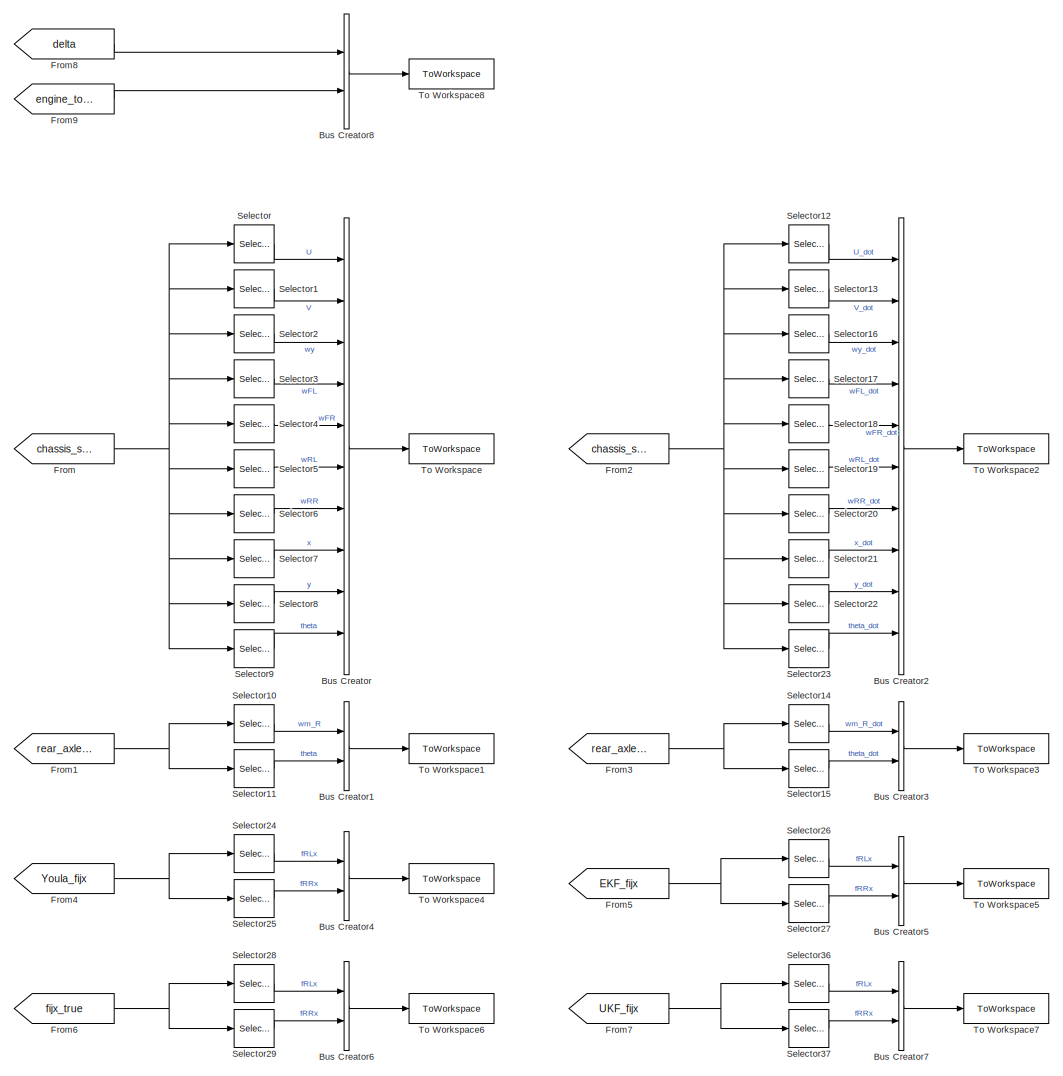
[diagram: root canvas - part 1/4, top center region]
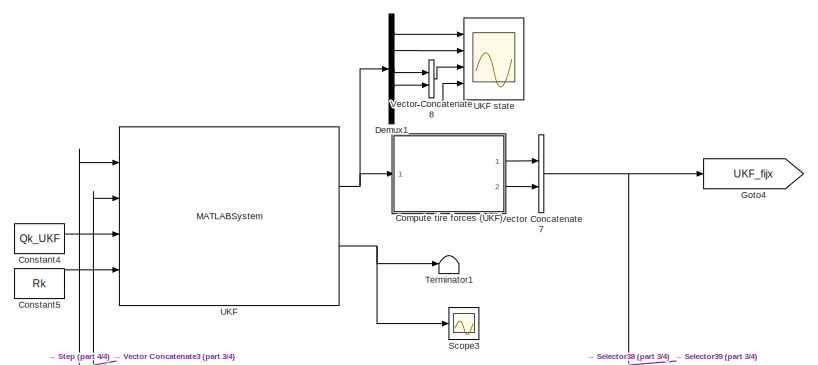
[diagram: root canvas - part 2/4, central region]
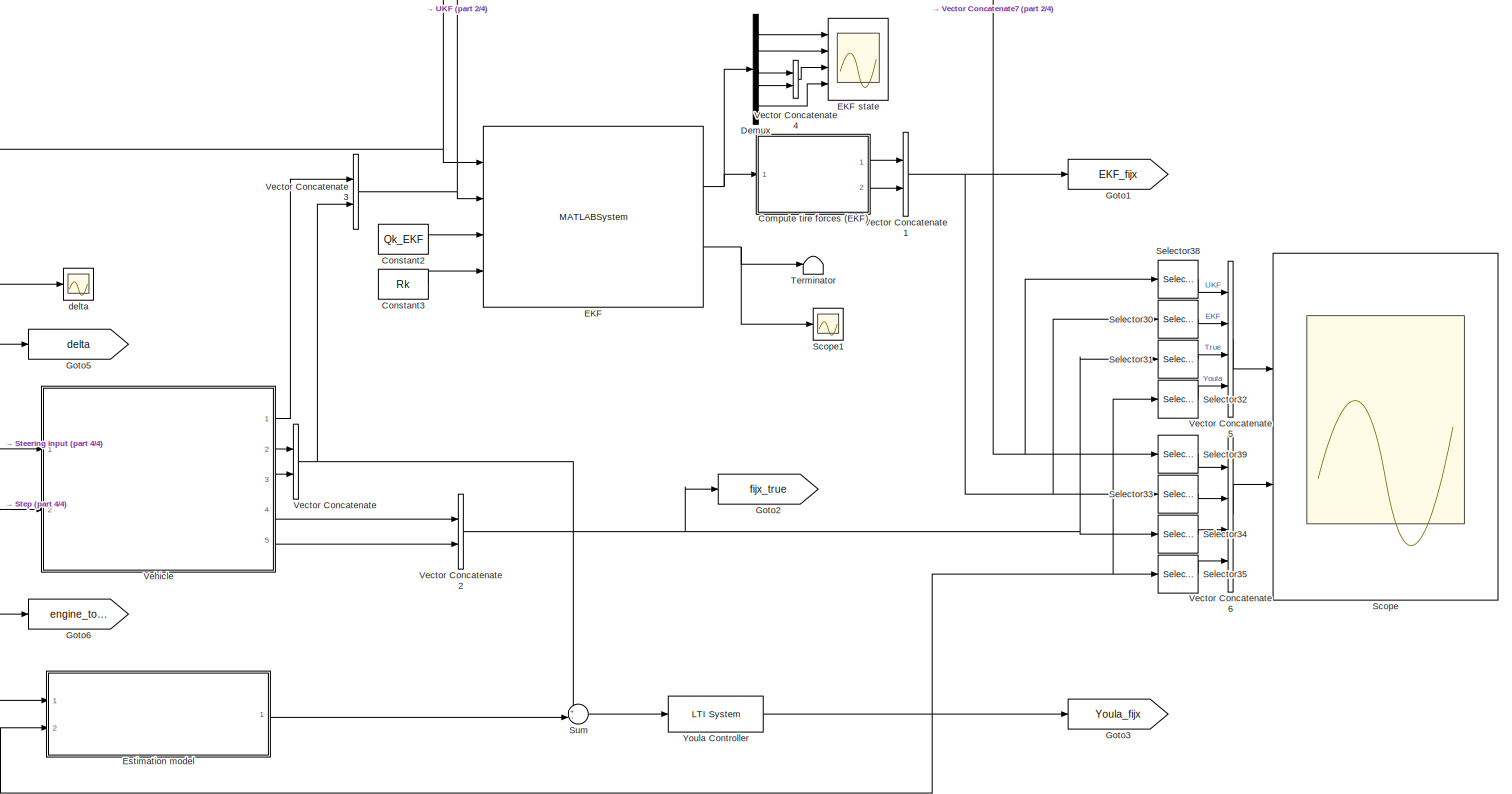
[diagram: root canvas - part 3/4, full width, bottom band]
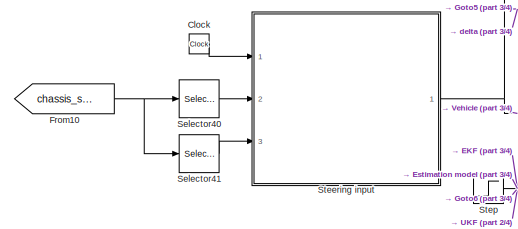
[diagram: root canvas - part 4/4, bottom left region]
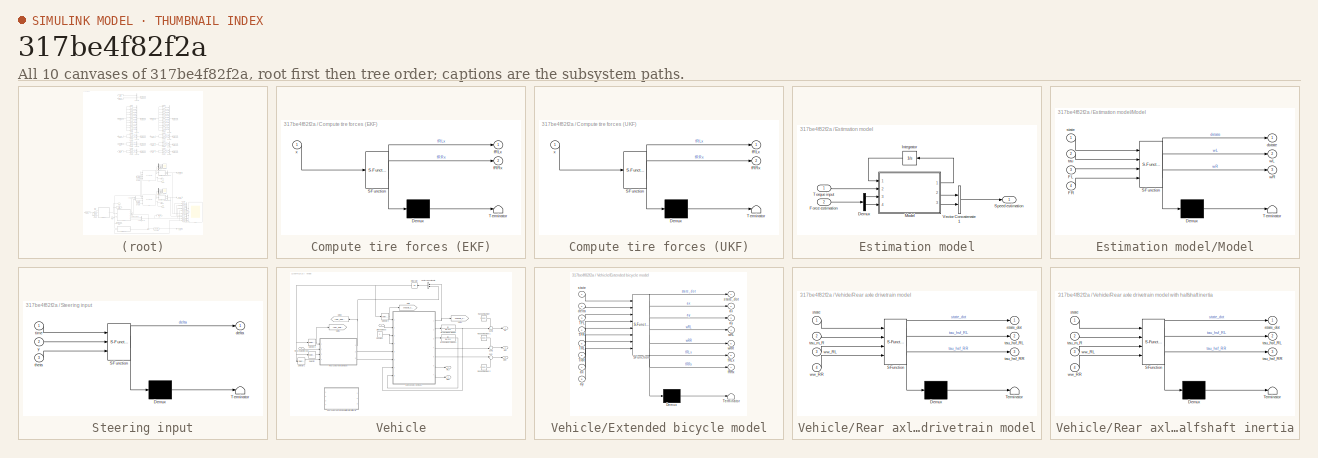
[diagram: thumbnail index - all 10 canvases of the model, root first then tree order]
MODEL slx_317be4f82f2a
KIND model
CONFIG AbsTol = auto
CONFIG EnableMultiTasking = off
CONFIG FixedStep = auto
CONFIG MaxStep = auto
CONFIG MinStep = auto
CONFIG RelTol = 1e-6
CONFIG SampleTimeConstraint = Unconstrained
CONFIG Solver = VariableStepAuto
CONFIG SolverName = VariableStepAuto
CONFIG StartTime = 0.0
CONFIG StopTime = 10.0
BLOCK [BusCreator] Bus Creator
  DisplayOption = bar
  InheritFromInputs = on
  Inputs = 10
  Ports = [10, 1]
BLOCK [BusCreator] Bus Creator1
  DisplayOption = bar
  InheritFromInputs = on
  Inputs = 2
  Ports = [2, 1]
BLOCK [BusCreator] Bus Creator2
  DisplayOption = bar
  InheritFromInputs = on
  Inputs = 10
  Ports = [10, 1]
BLOCK [BusCreator] Bus Creator3
  DisplayOption = bar
  InheritFromInputs = on
  Inputs = 2
  Ports = [2, 1]
BLOCK [BusCreator] Bus Creator4
  DisplayOption = bar
  InheritFromInputs = on
  Inputs = 2
  Ports = [2, 1]
BLOCK [BusCreator] Bus Creator5
  DisplayOption = bar
  InheritFromInputs = on
  Inputs = 2
  Ports = [2, 1]
BLOCK [BusCreator] Bus Creator6
  DisplayOption = bar
  InheritFromInputs = on
  Inputs = 2
  Ports = [2, 1]
BLOCK [BusCreator] Bus Creator7
  DisplayOption = bar
  InheritFromInputs = on
  Inputs = 2
  Ports = [2, 1]
BLOCK [BusCreator] Bus Creator8
  DisplayOption = bar
  InheritFromInputs = on
  Inputs = 2
  Ports = [2, 1]
BLOCK [Clock] Clock
BLOCK [SubSystem] Compute tire forces (EKF)
  ErrorFcn = Stateflow.Translate.translate
  PermitHierarchicalResolution = ExplicitOnly
  Ports = [1, 2]
  RequestExecContextInheritance = off
  SFBlockType = MATLAB Function
  TreatAsAtomicUnit = on
  Variant = off
BLOCK [Demux] Compute tire forces (EKF)/ Demux 
  Outputs = 1
  Ports = [1, 1]
BLOCK [S-Function] Compute tire forces (EKF)/ SFunction 
  EnableBusSupport = on
  FunctionName = sf_sfun
  Parameters = CRx_est,CRy_est,c1_est,c2_est,c3_est,epsDugoff_est,fRLz0_est,fRRz0_est,muRL0_est,muRR0_est,rw_est
  PortCounts = [1 3]
  Ports = [1, 3]
  SFcnIsStateOwnerBlock = off
  SFunctionDeploymentMode = off
  Tag = Stateflow S-Function model 5
BLOCK [Terminator] Compute tire forces (EKF)/ Terminator 
BLOCK [Outport] Compute tire forces (EKF)/fRLx
  IconDisplay = Port number
BLOCK [Outport] Compute tire forces (EKF)/fRRx
  IconDisplay = Port number
  Port = 2
BLOCK [Inport] Compute tire forces (EKF)/x
  IconDisplay = Port number
BLOCK [SubSystem] Compute tire forces (UKF)
  ErrorFcn = Stateflow.Translate.translate
  PermitHierarchicalResolution = ExplicitOnly
  Ports = [1, 2]
  RequestExecContextInheritance = off
  SFBlockType = MATLAB Function
  TreatAsAtomicUnit = on
  Variant = off
BLOCK [Demux] Compute tire forces (UKF)/ Demux 
  Outputs = 1
  Ports = [1, 1]
BLOCK [S-Function] Compute tire forces (UKF)/ SFunction 
  EnableBusSupport = on
  FunctionName = sf_sfun
  Parameters = CRx_est,CRy_est,c1_est,c2_est,c3_est,epsDugoff_est,fRLz0_est,fRRz0_est,muRL0_est,muRR0_est,rw_est
  PortCounts = [1 3]
  Ports = [1, 3]
  SFcnIsStateOwnerBlock = off
  SFunctionDeploymentMode = off
  Tag = Stateflow S-Function model 6
BLOCK [Terminator] Compute tire forces (UKF)/ Terminator 
BLOCK [Outport] Compute tire forces (UKF)/fRLx
  IconDisplay = Port number
BLOCK [Outport] Compute tire forces (UKF)/fRRx
  IconDisplay = Port number
  Port = 2
BLOCK [Inport] Compute tire forces (UKF)/x
  IconDisplay = Port number
BLOCK [Constant] Constant2
  Value = Qk_EKF
BLOCK [Constant] Constant3
  Value = Rk
BLOCK [Constant] Constant4
  Value = Qk_UKF
BLOCK [Constant] Constant5
  Value = Rk
BLOCK [Demux] Demux
  DisplayOption = bar
  Outputs = 5
  Ports = [1, 5]
BLOCK [Demux] Demux1
  DisplayOption = bar
  Outputs = 5
  Ports = [1, 5]
BLOCK [MATLABSystem] EKF
  CRx = 43302.5
  G = 9.9649
  Jm_R = 0.0351
  Jw = 0.9
  K_hsf = 2291.8312
  MaskDisplay = disp('Extended Kalman Filter');\nport_label('input',1,'u_k');\nport_label('input',2,'y_k');\nport_label('input',3,'Q_k');\nport_label('input',4,'R_k');\nport_label('output',1,'x_aposteriori');\nport_label('output',2,'P_aposteriori');
  MaskType = extendedKalmanFilter
  Ports = [4, 2]
  SimulateUsing = Interpreted execution
  System = extendedKalmanFilter
  Ts = 0.001
  b_hsf = 22.9183
  c1 = 1.2801
  c2 = 23.99
  c3 = 0.25
  epsDugoff = 0.01
  fRLz0 = 2969.4658
  fRRz0 = 2969.4658
  m = 1530
  muRL0 = 1
  muRR0 = 1
  nb_input = 1
  nb_output = 3
  nb_state = 5
  rw = 0.325
  x_init = [0;1107.2092;111.1111;111.1111;36.1111]
BLOCK [Scope] EKF state
  NumInputPorts = 4
  Ports = [4]
  ScopeSpecificationString = Simulink.scopes.TimeScopeBlockCfg('CurrentConfiguration', extmgr.ConfigurationSet(extmgr.Configuration('Core','General UI',true),extmgr.Configuration('Core','Source UI',true),extmgr.Configuration('Sources','WiredSimulink',true,'DataLoggingVariableName','ScopeData2'),extmgr.Configuration('Visuals','Time Domain',true,'SerializedDisplays',{struct('MinYLimReal','-0.02941','MaxYLimReal','0.16089','YLab...<+3434ch>
BLOCK [SubSystem] Estimation model
  Ports = [2, 1]
  RequestExecContextInheritance = off
  Variant = off
BLOCK [Demux] Estimation model/Demux
  DisplayOption = bar
  Outputs = 2
  Ports = [1, 2]
BLOCK [Inport] Estimation model/Force estimation
  IconDisplay = Port number
  Port = 2
BLOCK [Integrator] Estimation model/Integrator
  InitialCondition = [U_0/rw*G 0 U_0/rw U_0/rw]
  Ports = [1, 1]
BLOCK [SubSystem] Estimation model/Model
  ErrorFcn = Stateflow.Translate.translate
  PermitHierarchicalResolution = ExplicitOnly
  Ports = [4, 3]
  RequestExecContextInheritance = off
  SFBlockType = MATLAB Function
  TreatAsAtomicUnit = on
  Variant = off
BLOCK [Demux] Estimation model/Model/ Demux 
  Outputs = 1
  Ports = [1, 1]
BLOCK [S-Function] Estimation model/Model/ SFunction 
  EnableBusSupport = on
  FunctionName = sf_sfun
  Parameters = G,Jm_R,K_hsf,b_hsf,rw
  PortCounts = [4 4]
  Ports = [4, 4]
  SFcnIsStateOwnerBlock = off
  SFunctionDeploymentMode = off
  Tag = Stateflow S-Function model 3
BLOCK [Terminator] Estimation model/Model/ Terminator 
BLOCK [Inport] Estimation model/Model/FL
  IconDisplay = Port number
  Port = 3
BLOCK [Inport] Estimation model/Model/FR
  IconDisplay = Port number
  Port = 4
BLOCK [Outport] Estimation model/Model/dstate
  IconDisplay = Port number
BLOCK [Inport] Estimation model/Model/state
  IconDisplay = Port number
BLOCK [Inport] Estimation model/Model/tau
  IconDisplay = Port number
  Port = 2
BLOCK [Outport] Estimation model/Model/wL
  IconDisplay = Port number
  Port = 2
BLOCK [Outport] Estimation model/Model/wR
  IconDisplay = Port number
  Port = 3
BLOCK [Outport] Estimation model/Speed estimation
  IconDisplay = Port number
BLOCK [Inport] Estimation model/Torque input
  IconDisplay = Port number
BLOCK [Concatenate] Estimation model/Vector Concatenate1
  Ports = [2, 1]
BLOCK [From] From
  GotoTag = chassis_state
  TagVisibility = global
BLOCK [From] From1
  GotoTag = rear_axle_state
  TagVisibility = global
BLOCK [From] From10
  GotoTag = chassis_state
  TagVisibility = global
BLOCK [From] From2
  GotoTag = chassis_state_dot
  TagVisibility = global
BLOCK [From] From3
  GotoTag = rear_axle_state_dot
  TagVisibility = global
BLOCK [From] From4
  GotoTag = Youla_fijx
  TagVisibility = global
BLOCK [From] From5
  GotoTag = EKF_fijx
  TagVisibility = global
BLOCK [From] From6
  GotoTag = fijx_true
  TagVisibility = global
BLOCK [From] From7
  GotoTag = UKF_fijx
  TagVisibility = global
BLOCK [From] From8
  GotoTag = delta
  TagVisibility = global
BLOCK [From] From9
  GotoTag = engine_torque
  TagVisibility = global
BLOCK [Goto] Goto1
  GotoTag = EKF_fijx
  TagVisibility = global
BLOCK [Goto] Goto2
  GotoTag = fijx_true
  TagVisibility = global
BLOCK [Goto] Goto3
  GotoTag = Youla_fijx
  TagVisibility = global
BLOCK [Goto] Goto4
  GotoTag = UKF_fijx
  TagVisibility = global
BLOCK [Goto] Goto5
  GotoTag = delta
  TagVisibility = global
BLOCK [Goto] Goto6
  GotoTag = engine_torque
  TagVisibility = global
BLOCK [Scope] Scope
  NumInputPorts = 2
  Ports = [2]
  ScopeSpecificationString = Simulink.scopes.TimeScopeBlockCfg('CurrentConfiguration', extmgr.ConfigurationSet(extmgr.Configuration('Core','General UI',true),extmgr.Configuration('Core','Source UI',true),extmgr.Configuration('Sources','WiredSimulink',true),extmgr.Configuration('Visuals','Time Domain',true,'SerializedDisplays',{struct('MinYLimReal','-180.67637','MaxYLimReal','727.5907','YLabelReal','','MinYLimMag',' 0.00000','...<+2206ch>
BLOCK [Scope] Scope1
  NumInputPorts = 1
  Ports = [1]
  ScopeSpecificationString = Simulink.scopes.TimeScopeBlockCfg('CurrentConfiguration', extmgr.ConfigurationSet(extmgr.Configuration('Core','General UI',true),extmgr.Configuration('Core','Source UI',true),extmgr.Configuration('Sources','WiredSimulink',true,'DataLoggingVariableName','ScopeData1'),extmgr.Configuration('Visuals','Time Domain',true,'SerializedDisplays',{struct('MinYLimReal','-0.0004','MaxYLimReal','0.00042','YLabe...<+1670ch>
BLOCK [Scope] Scope3
  NumInputPorts = 1
  Ports = [1]
  ScopeSpecificationString = Simulink.scopes.TimeScopeBlockCfg('CurrentConfiguration', extmgr.ConfigurationSet(extmgr.Configuration('Core','General UI',true),extmgr.Configuration('Core','Source UI',true),extmgr.Configuration('Sources','WiredSimulink',true,'DataLoggingVariableName','ScopeData1'),extmgr.Configuration('Visuals','Time Domain',true,'SerializedDisplays',{struct('MinYLimReal','-0.00672','MaxYLimReal','0.00994','YLab...<+1672ch>
BLOCK [Selector] Selector
  IndexOptions = Index vector (dialog)
  Indices = 1
  OutputSizes = 1
  Ports = [1, 1]
BLOCK [Selector] Selector1
  IndexOptions = Index vector (dialog)
  Indices = 2
  OutputSizes = 1
  Ports = [1, 1]
BLOCK [Selector] Selector10
  IndexOptions = Index vector (dialog)
  Indices = 1
  OutputSizes = 1
  Ports = [1, 1]
BLOCK [Selector] Selector11
  IndexOptions = Index vector (dialog)
  Indices = 2
  OutputSizes = 1
  Ports = [1, 1]
BLOCK [Selector] Selector12
  IndexOptions = Index vector (dialog)
  Indices = 1
  OutputSizes = 1
  Ports = [1, 1]
BLOCK [Selector] Selector13
  IndexOptions = Index vector (dialog)
  Indices = 2
  OutputSizes = 1
  Ports = [1, 1]
BLOCK [Selector] Selector14
  IndexOptions = Index vector (dialog)
  Indices = 1
  OutputSizes = 1
  Ports = [1, 1]
BLOCK [Selector] Selector15
  IndexOptions = Index vector (dialog)
  Indices = 2
  OutputSizes = 1
  Ports = [1, 1]
BLOCK [Selector] Selector16
  IndexOptions = Index vector (dialog)
  Indices = 3
  OutputSizes = 1
  Ports = [1, 1]
BLOCK [Selector] Selector17
  IndexOptions = Index vector (dialog)
  Indices = 4
  OutputSizes = 1
  Ports = [1, 1]
BLOCK [Selector] Selector18
  IndexOptions = Index vector (dialog)
  Indices = 5
  OutputSizes = 1
  Ports = [1, 1]
BLOCK [Selector] Selector19
  IndexOptions = Index vector (dialog)
  Indices = 6
  OutputSizes = 1
  Ports = [1, 1]
BLOCK [Selector] Selector2
  IndexOptions = Index vector (dialog)
  Indices = 3
  OutputSizes = 1
  Ports = [1, 1]
BLOCK [Selector] Selector20
  IndexOptions = Index vector (dialog)
  Indices = 7
  OutputSizes = 1
  Ports = [1, 1]
BLOCK [Selector] Selector21
  IndexOptions = Index vector (dialog)
  Indices = 8
  OutputSizes = 1
  Ports = [1, 1]
BLOCK [Selector] Selector22
  IndexOptions = Index vector (dialog)
  Indices = 9
  OutputSizes = 1
  Ports = [1, 1]
BLOCK [Selector] Selector23
  IndexOptions = Index vector (dialog)
  Indices = 10
  OutputSizes = 1
  Ports = [1, 1]
BLOCK [Selector] Selector24
  IndexOptions = Index vector (dialog)
  Indices = 1
  OutputSizes = 1
  Ports = [1, 1]
BLOCK [Selector] Selector25
  IndexOptions = Index vector (dialog)
  Indices = 2
  OutputSizes = 1
  Ports = [1, 1]
BLOCK [Selector] Selector26
  IndexOptions = Index vector (dialog)
  Indices = 1
  OutputSizes = 1
  Ports = [1, 1]
BLOCK [Selector] Selector27
  IndexOptions = Index vector (dialog)
  Indices = 2
  OutputSizes = 1
  Ports = [1, 1]
BLOCK [Selector] Selector28
  IndexOptions = Index vector (dialog)
  Indices = 1
  OutputSizes = 1
  Ports = [1, 1]
BLOCK [Selector] Selector29
  IndexOptions = Index vector (dialog)
  Indices = 2
  OutputSizes = 1
  Ports = [1, 1]
BLOCK [Selector] Selector3
  IndexOptions = Index vector (dialog)
  Indices = 4
  OutputSizes = 1
  Ports = [1, 1]
BLOCK [Selector] Selector30
  IndexOptions = Index vector (dialog)
  Indices = 1
  OutputSizes = 1
  Ports = [1, 1]
BLOCK [Selector] Selector31
  IndexOptions = Index vector (dialog)
  Indices = 1
  OutputSizes = 1
  Ports = [1, 1]
BLOCK [Selector] Selector32
  IndexOptions = Index vector (dialog)
  Indices = 1
  OutputSizes = 1
  Ports = [1, 1]
BLOCK [Selector] Selector33
  IndexOptions = Index vector (dialog)
  Indices = 2
  OutputSizes = 1
  Ports = [1, 1]
BLOCK [Selector] Selector34
  IndexOptions = Index vector (dialog)
  Indices = 2
  OutputSizes = 1
  Ports = [1, 1]
BLOCK [Selector] Selector35
  IndexOptions = Index vector (dialog)
  Indices = 2
  OutputSizes = 1
  Ports = [1, 1]
BLOCK [Selector] Selector36
  IndexOptions = Index vector (dialog)
  Indices = 1
  OutputSizes = 1
  Ports = [1, 1]
BLOCK [Selector] Selector37
  IndexOptions = Index vector (dialog)
  Indices = 2
  OutputSizes = 1
  Ports = [1, 1]
BLOCK [Selector] Selector38
  IndexOptions = Index vector (dialog)
  Indices = 1
  OutputSizes = 1
  Ports = [1, 1]
BLOCK [Selector] Selector39
  IndexOptions = Index vector (dialog)
  Indices = 2
  OutputSizes = 1
  Ports = [1, 1]
BLOCK [Selector] Selector4
  IndexOptions = Index vector (dialog)
  Indices = 5
  OutputSizes = 1
  Ports = [1, 1]
BLOCK [Selector] Selector40
  IndexOptions = Index vector (dialog)
  Indices = 9
  OutputSizes = 1
  Ports = [1, 1]
BLOCK [Selector] Selector41
  IndexOptions = Index vector (dialog)
  Indices = 10
  OutputSizes = 1
  Ports = [1, 1]
BLOCK [Selector] Selector5
  IndexOptions = Index vector (dialog)
  Indices = 6
  OutputSizes = 1
  Ports = [1, 1]
BLOCK [Selector] Selector6
  IndexOptions = Index vector (dialog)
  Indices = 7
  OutputSizes = 1
  Ports = [1, 1]
BLOCK [Selector] Selector7
  IndexOptions = Index vector (dialog)
  Indices = 8
  OutputSizes = 1
  Ports = [1, 1]
BLOCK [Selector] Selector8
  IndexOptions = Index vector (dialog)
  Indices = 9
  OutputSizes = 1
  Ports = [1, 1]
BLOCK [Selector] Selector9
  IndexOptions = Index vector (dialog)
  Indices = 10
  OutputSizes = 1
  Ports = [1, 1]
BLOCK [SubSystem] Steering input
  ErrorFcn = Stateflow.Translate.translate
  PermitHierarchicalResolution = ExplicitOnly
  Ports = [3, 1]
  RequestExecContextInheritance = off
  SFBlockType = MATLAB Function
  TreatAsAtomicUnit = on
  Variant = off
BLOCK [Demux] Steering input/ Demux 
  Outputs = 1
  Ports = [1, 1]
BLOCK [S-Function] Steering input/ SFunction 
  EnableBusSupport = on
  FunctionName = sf_sfun
  Parameters = maneuver_nb
  PortCounts = [3 2]
  Ports = [3, 2]
  SFcnIsStateOwnerBlock = off
  SFunctionDeploymentMode = off
  Tag = Stateflow S-Function model 4
BLOCK [Terminator] Steering input/ Terminator 
BLOCK [Outport] Steering input/delta
  IconDisplay = Port number
BLOCK [Inport] Steering input/theta
  IconDisplay = Port number
  Port = 3
BLOCK [Inport] Steering input/time
  IconDisplay = Port number
BLOCK [Inport] Steering input/y
  IconDisplay = Port number
  Port = 2
BLOCK [Step] Step
  After = engine_torque
  SampleTime = 0
  Time = 0.5
BLOCK [Sum] Sum
  IconShape = round
  InputSameDT = off
  Inputs = +-|
  OutDataTypeStr = Inherit: Inherit via internal rule
  Ports = [2, 1]
  SaturateOnIntegerOverflow = off
BLOCK [Terminator] Terminator
BLOCK [Terminator] Terminator1
BLOCK [ToWorkspace] To Workspace
  FixptAsFi = on
  MaxDataPoints = inf
  Ports = [1]
  SampleTime = -1
  Save2DSignal = 3-D array (concatenate along third dimension)
  SaveFormat = Timeseries
  VariableName = chassis_state
BLOCK [ToWorkspace] To Workspace1
  FixptAsFi = on
  MaxDataPoints = inf
  Ports = [1]
  SampleTime = -1
  Save2DSignal = 3-D array (concatenate along third dimension)
  SaveFormat = Timeseries
  VariableName = rear_axle
BLOCK [ToWorkspace] To Workspace2
  FixptAsFi = on
  MaxDataPoints = inf
  Ports = [1]
  SampleTime = -1
  Save2DSignal = 3-D array (concatenate along third dimension)
  SaveFormat = Timeseries
  VariableName = chassis_state_dot
BLOCK [ToWorkspace] To Workspace3
  FixptAsFi = on
  MaxDataPoints = inf
  Ports = [1]
  SampleTime = -1
  Save2DSignal = 3-D array (concatenate along third dimension)
  SaveFormat = Timeseries
  VariableName = rear_axle_dot
BLOCK [ToWorkspace] To Workspace4
  FixptAsFi = on
  MaxDataPoints = inf
  Ports = [1]
  SampleTime = -1
  Save2DSignal = 3-D array (concatenate along third dimension)
  SaveFormat = Timeseries
  VariableName = Youla
BLOCK [ToWorkspace] To Workspace5
  FixptAsFi = on
  MaxDataPoints = inf
  Ports = [1]
  SampleTime = -1
  Save2DSignal = 3-D array (concatenate along third dimension)
  SaveFormat = Timeseries
  VariableName = EKF
BLOCK [ToWorkspace] To Workspace6
  FixptAsFi = on
  MaxDataPoints = inf
  Ports = [1]
  SampleTime = -1
  Save2DSignal = 3-D array (concatenate along third dimension)
  SaveFormat = Timeseries
  VariableName = fijx_true
BLOCK [ToWorkspace] To Workspace7
  FixptAsFi = on
  MaxDataPoints = inf
  Ports = [1]
  SampleTime = -1
  Save2DSignal = 3-D array (concatenate along third dimension)
  SaveFormat = Timeseries
  VariableName = UKF
BLOCK [ToWorkspace] To Workspace8
  FixptAsFi = on
  MaxDataPoints = inf
  Ports = [1]
  SampleTime = -1
  Save2DSignal = 3-D array (concatenate along third dimension)
  SaveFormat = Timeseries
  VariableName = driver
BLOCK [MATLABSystem] UKF
  CRx = 43302.5
  G = 9.9649
  Jm_R = 0.0351
  Jw = 0.9
  K_hsf = 2291.8312
  MaskDisplay = disp('Unscented Kalman Filter');\nport_label('input',1,'u_k');\nport_label('input',2,'y_k');\nport_label('input',3,'Q_k');\nport_label('input',4,'R_k');\nport_label('output',1,'x_aposteriori');\nport_label('output',2,'P_aposteriori');
  MaskType = unscentedKalmanFilter
  Ports = [4, 2]
  SimulateUsing = Interpreted execution
  System = unscentedKalmanFilter
  Ts = 0.001
  b_hsf = 22.9183
  c1 = 1.2801
  c2 = 23.99
  c3 = 0.25
  epsDugoff = 0.01
  fRLz0 = 2969.4658
  fRRz0 = 2969.4658
  m = 1530
  muRL0 = 1
  muRR0 = 1
  nb_input = 1
  nb_output = 3
  nb_state = 5
  rw = 0.325
  x_init = [0;1107.2092;111.1111;111.1111;36.1111]
BLOCK [Scope] UKF state
  NumInputPorts = 4
  Ports = [4]
  ScopeSpecificationString = Simulink.scopes.TimeScopeBlockCfg('CurrentConfiguration', extmgr.ConfigurationSet(extmgr.Configuration('Core','General UI',true),extmgr.Configuration('Core','Source UI',true),extmgr.Configuration('Sources','WiredSimulink',true,'DataLoggingVariableName','ScopeData2'),extmgr.Configuration('Visuals','Time Domain',true,'SerializedDisplays',{struct('MinYLimReal','-0.0299','MaxYLimReal','0.04161','YLabe...<+3440ch>
BLOCK [Concatenate] Vector Concatenate
  Ports = [2, 1]
BLOCK [Concatenate] Vector Concatenate1
  Ports = [2, 1]
BLOCK [Concatenate] Vector Concatenate2
  Ports = [2, 1]
BLOCK [Concatenate] Vector Concatenate3
  Ports = [2, 1]
BLOCK [Concatenate] Vector Concatenate4
  Ports = [2, 1]
BLOCK [Concatenate] Vector Concatenate5
  NumInputs = 4
  Ports = [4, 1]
BLOCK [Concatenate] Vector Concatenate6
  NumInputs = 4
  Ports = [4, 1]
BLOCK [Concatenate] Vector Concatenate7
  Ports = [2, 1]
BLOCK [Concatenate] Vector Concatenate8
  Ports = [2, 1]
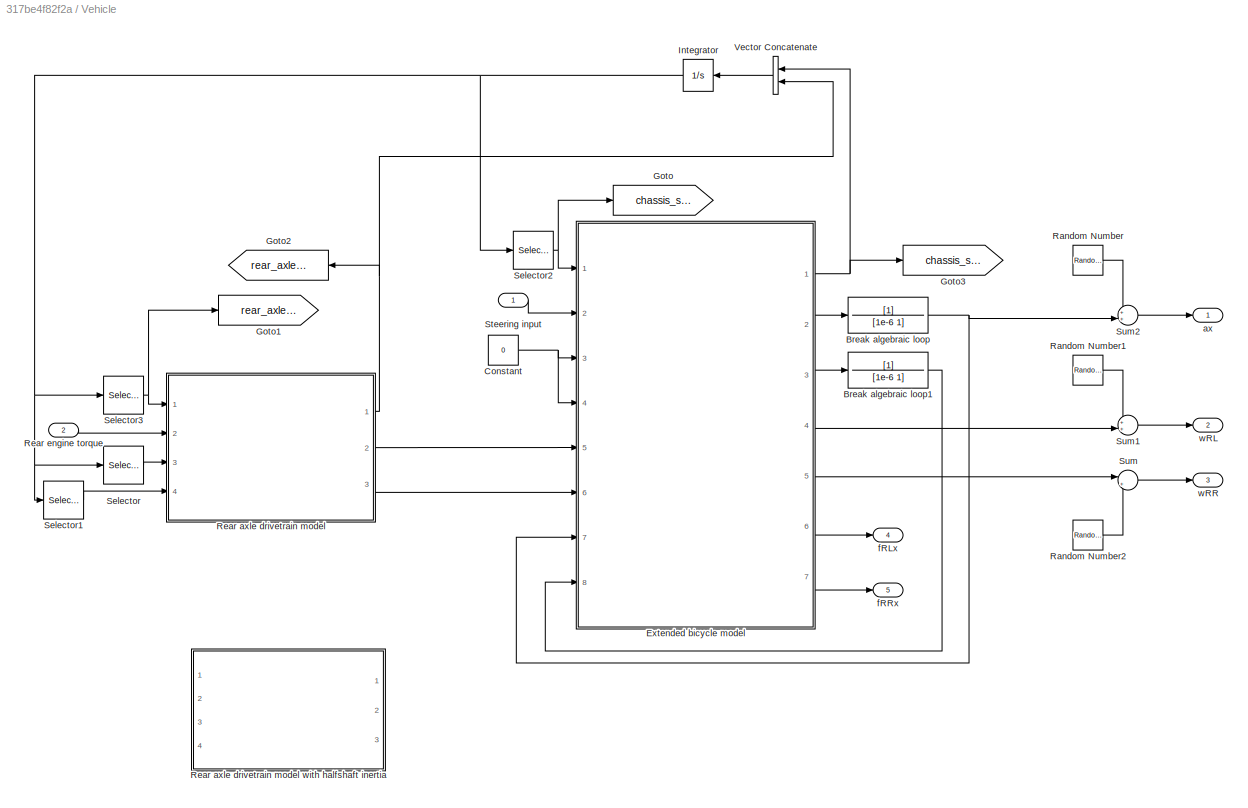
BLOCK [SubSystem] Vehicle
  Ports = [2, 5]
  RequestExecContextInheritance = off
  Variant = off
BLOCK [TransferFcn] Vehicle/Break algebraic loop
  Denominator = [1e-6 1]
BLOCK [TransferFcn] Vehicle/Break algebraic loop1
  Denominator = [1e-6 1]
BLOCK [Constant] Vehicle/Constant
  Value = 0
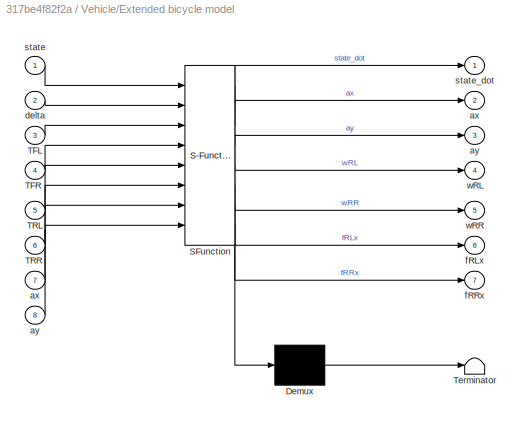
BLOCK [SubSystem] Vehicle/Extended bicycle model
  ErrorFcn = Stateflow.Translate.translate
  PermitHierarchicalResolution = ExplicitOnly
  Ports = [8, 7]
  RequestExecContextInheritance = off
  SFBlockType = MATLAB Function
  TreatAsAtomicUnit = on
  Variant = off
BLOCK [Demux] Vehicle/Extended bicycle model/ Demux 
  Outputs = 1
  Ports = [1, 1]
BLOCK [S-Function] Vehicle/Extended bicycle model/ SFunction 
  EnableBusSupport = on
  FunctionName = sf_sfun
  Parameters = CFx,CFy,CRx,CRy,DFFy,DFRy,DFx,Jw,Jy,T,a,alpha,b,c1,c2,c3,epsDugoff,fFLz0,fFRz0,fRLz0,fRRz0,g,m,muFL0,muFR0,muRL0,muRR0,rw
  PortCounts = [8 8]
  Ports = [8, 8]
  SFcnIsStateOwnerBlock = off
  SFunctionDeploymentMode = off
  Tag = Stateflow S-Function model 2
BLOCK [Terminator] Vehicle/Extended bicycle model/ Terminator 
BLOCK [Inport] Vehicle/Extended bicycle model/TFL
  IconDisplay = Port number
  Port = 3
BLOCK [Inport] Vehicle/Extended bicycle model/TFR
  IconDisplay = Port number
  Port = 4
BLOCK [Inport] Vehicle/Extended bicycle model/TRL
  IconDisplay = Port number
  Port = 5
BLOCK [Inport] Vehicle/Extended bicycle model/TRR
  IconDisplay = Port number
  Port = 6
BLOCK [Outport] Vehicle/Extended bicycle model/ax
  IconDisplay = Port number
  Port = 2
BLOCK [Inport] Vehicle/Extended bicycle model/ax 
  IconDisplay = Port number
  Port = 7
BLOCK [Outport] Vehicle/Extended bicycle model/ay
  IconDisplay = Port number
  Port = 3
BLOCK [Inport] Vehicle/Extended bicycle model/ay 
  IconDisplay = Port number
  Port = 8
BLOCK [Inport] Vehicle/Extended bicycle model/delta
  IconDisplay = Port number
  Port = 2
BLOCK [Outport] Vehicle/Extended bicycle model/fRLx
  IconDisplay = Port number
  Port = 6
BLOCK [Outport] Vehicle/Extended bicycle model/fRRx
  IconDisplay = Port number
  Port = 7
BLOCK [Inport] Vehicle/Extended bicycle model/state
  IconDisplay = Port number
BLOCK [Outport] Vehicle/Extended bicycle model/state_dot
  IconDisplay = Port number
BLOCK [Outport] Vehicle/Extended bicycle model/wRL
  IconDisplay = Port number
  Port = 4
BLOCK [Outport] Vehicle/Extended bicycle model/wRR
  IconDisplay = Port number
  Port = 5
BLOCK [Goto] Vehicle/Goto
  GotoTag = chassis_state
  TagVisibility = global
BLOCK [Goto] Vehicle/Goto1
  GotoTag = rear_axle_state
  TagVisibility = global
BLOCK [Goto] Vehicle/Goto2
  GotoTag = rear_axle_state_dot
  TagVisibility = global
BLOCK [Goto] Vehicle/Goto3
  GotoTag = chassis_state_dot
  TagVisibility = global
BLOCK [Integrator] Vehicle/Integrator
  InitialCondition = [chassis_state_init rear_axle_state_init]
  Ports = [1, 1]
BLOCK [RandomNumber] Vehicle/Random Number
  SampleTime = Ts_sensor
  Variance = sigma_ax
BLOCK [RandomNumber] Vehicle/Random Number1
  SampleTime = Ts_sensor
  Seed = 1
  Variance = sigma_wij
BLOCK [RandomNumber] Vehicle/Random Number2
  SampleTime = Ts_sensor
  Seed = 2
  Variance = sigma_wij
BLOCK [SubSystem] Vehicle/Rear axle drivetrain model
  ErrorFcn = Stateflow.Translate.translate
  PermitHierarchicalResolution = ExplicitOnly
  Ports = [4, 3]
  RequestExecContextInheritance = off
  SFBlockType = MATLAB Function
  TreatAsAtomicUnit = on
  Variant = off
BLOCK [SubSystem] Vehicle/Rear axle drivetrain model with halfshaft inertia
  Commented = on
  ErrorFcn = Stateflow.Translate.translate
  PermitHierarchicalResolution = ExplicitOnly
  Ports = [4, 3]
  RequestExecContextInheritance = off
  SFBlockType = MATLAB Function
  TreatAsAtomicUnit = on
  Variant = off
BLOCK [Demux] Vehicle/Rear axle drivetrain model with halfshaft inertia/ Demux 
  Outputs = 1
  Ports = [1, 1]
BLOCK [S-Function] Vehicle/Rear axle drivetrain model with halfshaft inertia/ SFunction 
  EnableBusSupport = on
  FunctionName = sf_sfun
  Parameters = G,J_hsf,Jm_R,K_hsf_RL,K_hsf_RR,K_sf_R,b_hsf_RL,b_hsf_RR,b_sf_R
  PortCounts = [4 4]
  Ports = [4, 4]
  SFcnIsStateOwnerBlock = off
  SFunctionDeploymentMode = off
  Tag = Stateflow S-Function model 1
BLOCK [Terminator] Vehicle/Rear axle drivetrain model with halfshaft inertia/ Terminator 
BLOCK [Inport] Vehicle/Rear axle drivetrain model with halfshaft inertia/state
  IconDisplay = Port number
BLOCK [Outport] Vehicle/Rear axle drivetrain model with halfshaft inertia/state_dot
  IconDisplay = Port number
BLOCK [Outport] Vehicle/Rear axle drivetrain model with halfshaft inertia/tau_hsf_RL
  IconDisplay = Port number
  Port = 2
BLOCK [Outport] Vehicle/Rear axle drivetrain model with halfshaft inertia/tau_hsf_RR
  IconDisplay = Port number
  Port = 3
BLOCK [Inport] Vehicle/Rear axle drivetrain model with halfshaft inertia/tau_m_R
  IconDisplay = Port number
  Port = 2
BLOCK [Inport] Vehicle/Rear axle drivetrain model with halfshaft inertia/ww_RL
  IconDisplay = Port number
  Port = 3
BLOCK [Inport] Vehicle/Rear axle drivetrain model with halfshaft inertia/ww_RR
  IconDisplay = Port number
  Port = 4
BLOCK [Demux] Vehicle/Rear axle drivetrain model/ Demux 
  Outputs = 1
  Ports = [1, 1]
BLOCK [S-Function] Vehicle/Rear axle drivetrain model/ SFunction 
  EnableBusSupport = on
  FunctionName = sf_sfun
  Parameters = G,Jm_R,K_hsf,b_hsf
  PortCounts = [4 4]
  Ports = [4, 4]
  SFcnIsStateOwnerBlock = off
  SFunctionDeploymentMode = off
  Tag = Stateflow S-Function model 9
BLOCK [Terminator] Vehicle/Rear axle drivetrain model/ Terminator 
BLOCK [Inport] Vehicle/Rear axle drivetrain model/state
  IconDisplay = Port number
BLOCK [Outport] Vehicle/Rear axle drivetrain model/state_dot
  IconDisplay = Port number
BLOCK [Outport] Vehicle/Rear axle drivetrain model/tau_hsf_RL
  IconDisplay = Port number
  Port = 2
BLOCK [Outport] Vehicle/Rear axle drivetrain model/tau_hsf_RR
  IconDisplay = Port number
  Port = 3
BLOCK [Inport] Vehicle/Rear axle drivetrain model/tau_m_R
  IconDisplay = Port number
  Port = 2
BLOCK [Inport] Vehicle/Rear axle drivetrain model/ww_RL
  IconDisplay = Port number
  Port = 3
BLOCK [Inport] Vehicle/Rear axle drivetrain model/ww_RR
  IconDisplay = Port number
  Port = 4
BLOCK [Inport] Vehicle/Rear engine torque
  IconDisplay = Port number
  Port = 2
BLOCK [Selector] Vehicle/Selector
  IndexOptions = Index vector (dialog)
  Indices = [6]
  OutputSizes = 1
  Ports = [1, 1]
BLOCK [Selector] Vehicle/Selector1
  IndexOptions = Index vector (dialog)
  Indices = [7]
  OutputSizes = 1
  Ports = [1, 1]
BLOCK [Selector] Vehicle/Selector2
  IndexOptions = Index vector (dialog)
  Indices = [1:10]
  OutputSizes = 1
  Ports = [1, 1]
BLOCK [Selector] Vehicle/Selector3
  IndexOptions = Index vector (dialog)
  Indices = [11:12]
  OutputSizes = 1
  Ports = [1, 1]
BLOCK [Inport] Vehicle/Steering input
  IconDisplay = Port number
BLOCK [Sum] Vehicle/Sum
  IconShape = round
  InputSameDT = off
  Inputs = |++
  OutDataTypeStr = Inherit: Inherit via internal rule
  Ports = [2, 1]
  SaturateOnIntegerOverflow = off
BLOCK [Sum] Vehicle/Sum1
  IconShape = round
  InputSameDT = off
  Inputs = ++|
  OutDataTypeStr = Inherit: Inherit via internal rule
  Ports = [2, 1]
  SaturateOnIntegerOverflow = off
BLOCK [Sum] Vehicle/Sum2
  IconShape = round
  InputSameDT = off
  Inputs = ++|
  OutDataTypeStr = Inherit: Inherit via internal rule
  Ports = [2, 1]
  SaturateOnIntegerOverflow = off
BLOCK [Concatenate] Vehicle/Vector Concatenate
  Ports = [2, 1]
BLOCK [Outport] Vehicle/ax
  IconDisplay = Port number
BLOCK [Outport] Vehicle/fRLx
  IconDisplay = Port number
  Port = 4
BLOCK [Outport] Vehicle/fRRx
  IconDisplay = Port number
  Port = 5
BLOCK [Outport] Vehicle/wRL
  IconDisplay = Port number
  Port = 2
BLOCK [Outport] Vehicle/wRR
  IconDisplay = Port number
  Port = 3
BLOCK [Reference] Youla Controller  REF=cstblocks/LTI System
  Ports = [1, 1]
  SourceBlock = cstblocks/LTI System
  SourceProductBaseCode = CT
  SourceProductName = Control System Toolbox
  SourceType = LTI Block
BLOCK [Scope] delta
  NumInputPorts = 1
  Ports = [1]
  ScopeSpecificationString = Simulink.scopes.TimeScopeBlockCfg('CurrentConfiguration', extmgr.ConfigurationSet(extmgr.Configuration('Core','General UI',true),extmgr.Configuration('Core','Source UI',true),extmgr.Configuration('Sources','WiredSimulink',true,'DataLoggingVariableName','ScopeData1'),extmgr.Configuration('Visuals','Time Domain',true,'SerializedDisplays',{struct('MinYLimReal','-0.03409','MaxYLimReal','0.03409','YLab...<+1428ch>
LINE Bus Creator1:1 -> To Workspace1:1
LINE Bus Creator2:1 -> To Workspace2:1
LINE Bus Creator3:1 -> To Workspace3:1
LINE Bus Creator4:1 -> To Workspace4:1
LINE Bus Creator5:1 -> To Workspace5:1
LINE Bus Creator6:1 -> To Workspace6:1
LINE Bus Creator7:1 -> To Workspace7:1
LINE Bus Creator8:1 -> To Workspace8:1
LINE Bus Creator:1 -> To Workspace:1
LINE Clock:1 -> Steering input:1
LINE Compute tire forces (EKF):1 -> Vector Concatenate1:1
LINE Compute tire forces (EKF):2 -> Vector Concatenate1:2
LINE Compute tire forces (UKF):1 -> Vector Concatenate7:1
LINE Compute tire forces (UKF):2 -> Vector Concatenate7:2
LINE Constant2:1 -> EKF:3
LINE Constant3:1 -> EKF:4
LINE Constant4:1 -> UKF:3
LINE Constant5:1 -> UKF:4
LINE Demux1:1 -> UKF state:1
LINE Demux1:2 -> UKF state:2
LINE Demux1:3 -> Vector Concatenate8:1
LINE Demux1:4 -> Vector Concatenate8:2
LINE Demux1:5 -> UKF state:4
LINE Demux:1 -> EKF state:1
LINE Demux:2 -> EKF state:2
LINE Demux:3 -> Vector Concatenate4:1
LINE Demux:4 -> Vector Concatenate4:2
LINE Demux:5 -> EKF state:4
NET EKF:1 -> Compute tire forces (EKF):1, Demux:1
NET EKF:2 -> Scope1:1, Terminator:1
LINE Estimation model/Demux:1 -> Estimation model/Model:3
LINE Estimation model/Demux:2 -> Estimation model/Model:4
LINE Estimation model/Force estimation:1 -> Estimation model/Demux:1
LINE Estimation model/Integrator:1 -> Estimation model/Model:1
LINE Estimation model/Model:1 -> Estimation model/Integrator:1
LINE Estimation model/Model:2 -> Estimation model/Vector Concatenate1:1
LINE Estimation model/Model:3 -> Estimation model/Vector Concatenate1:2
LINE Estimation model/Torque input:1 -> Estimation model/Model:2
LINE Estimation model/Vector Concatenate1:1 -> Estimation model/Speed estimation:1
LINE Estimation model:1 -> Sum:2
NET From10:1 -> Selector40:1, Selector41:1
NET From1:1 -> Selector10:1, Selector11:1
NET From2:1 -> Selector12:1, Selector13:1, Selector16:1, Selector17:1, Selector18:1, Selector19:1, Selector20:1, Selector21:1, Selector22:1, Selector23:1
NET From3:1 -> Selector14:1, Selector15:1
NET From4:1 -> Selector24:1, Selector25:1
NET From5:1 -> Selector26:1, Selector27:1
NET From6:1 -> Selector28:1, Selector29:1
NET From7:1 -> Selector36:1, Selector37:1
LINE From8:1 -> Bus Creator8:1
LINE From9:1 -> Bus Creator8:2
NET From:1 -> Selector1:1, Selector2:1, Selector3:1, Selector4:1, Selector5:1, Selector6:1, Selector7:1, Selector8:1, Selector9:1, Selector:1
LINE Selector10:1 -> Bus Creator1:1
LINE Selector11:1 -> Bus Creator1:2
LINE Selector12:1 -> Bus Creator2:1
LINE Selector13:1 -> Bus Creator2:2
LINE Selector14:1 -> Bus Creator3:1
LINE Selector15:1 -> Bus Creator3:2
LINE Selector16:1 -> Bus Creator2:3
LINE Selector17:1 -> Bus Creator2:4
LINE Selector18:1 -> Bus Creator2:5
LINE Selector19:1 -> Bus Creator2:6
LINE Selector1:1 -> Bus Creator:2
LINE Selector20:1 -> Bus Creator2:7
LINE Selector21:1 -> Bus Creator2:8
LINE Selector22:1 -> Bus Creator2:9
LINE Selector23:1 -> Bus Creator2:10
LINE Selector24:1 -> Bus Creator4:1
LINE Selector25:1 -> Bus Creator4:2
LINE Selector26:1 -> Bus Creator5:1
LINE Selector27:1 -> Bus Creator5:2
LINE Selector28:1 -> Bus Creator6:1
LINE Selector29:1 -> Bus Creator6:2
LINE Selector2:1 -> Bus Creator:3
LINE Selector30:1 -> Vector Concatenate5:2
LINE Selector31:1 -> Vector Concatenate5:3
LINE Selector32:1 -> Vector Concatenate5:4
LINE Selector33:1 -> Vector Concatenate6:2
LINE Selector34:1 -> Vector Concatenate6:3
LINE Selector35:1 -> Vector Concatenate6:4
LINE Selector36:1 -> Bus Creator7:1
LINE Selector37:1 -> Bus Creator7:2
LINE Selector38:1 -> Vector Concatenate5:1
LINE Selector39:1 -> Vector Concatenate6:1
LINE Selector3:1 -> Bus Creator:4
LINE Selector40:1 -> Steering input:2
LINE Selector41:1 -> Steering input:3
LINE Selector4:1 -> Bus Creator:5
LINE Selector5:1 -> Bus Creator:6
LINE Selector6:1 -> Bus Creator:7
LINE Selector7:1 -> Bus Creator:8
LINE Selector8:1 -> Bus Creator:9
LINE Selector9:1 -> Bus Creator:10
LINE Selector:1 -> Bus Creator:1
NET Steering input:1 -> Goto5:1, Vehicle:1, delta:1
NET Step:1 -> EKF:1, Estimation model:1, Goto6:1, UKF:1, Vehicle:2
LINE Sum:1 -> Youla Controller:1
NET UKF:1 -> Compute tire forces (UKF):1, Demux1:1
NET UKF:2 -> Scope3:1, Terminator1:1
NET Vector Concatenate1:1 -> Goto1:1, Selector30:1, Selector33:1
NET Vector Concatenate2:1 -> Goto2:1, Selector31:1, Selector34:1
NET Vector Concatenate3:1 -> EKF:2, UKF:2
LINE Vector Concatenate4:1 -> EKF state:3
LINE Vector Concatenate5:1 -> Scope:1
LINE Vector Concatenate6:1 -> Scope:2
NET Vector Concatenate7:1 -> Goto4:1, Selector38:1, Selector39:1
LINE Vector Concatenate8:1 -> UKF state:3
NET Vector Concatenate:1 -> Sum:1, Vector Concatenate3:2
LINE Vehicle/Break algebraic loop1:1 -> Vehicle/Extended bicycle model:8
NET Vehicle/Break algebraic loop:1 -> Vehicle/Extended bicycle model:7, Vehicle/Sum2:2
NET Vehicle/Constant:1 -> Vehicle/Extended bicycle model:3, Vehicle/Extended bicycle model:4
NET Vehicle/Extended bicycle model:1 -> Vehicle/Goto3:1, Vehicle/Vector Concatenate:1
LINE Vehicle/Extended bicycle model:2 -> Vehicle/Break algebraic loop:1
LINE Vehicle/Extended bicycle model:3 -> Vehicle/Break algebraic loop1:1
LINE Vehicle/Extended bicycle model:4 -> Vehicle/Sum1:2
LINE Vehicle/Extended bicycle model:5 -> Vehicle/Sum:1
LINE Vehicle/Extended bicycle model:6 -> Vehicle/fRLx:1
LINE Vehicle/Extended bicycle model:7 -> Vehicle/fRRx:1
NET Vehicle/Integrator:1 -> Vehicle/Selector1:1, Vehicle/Selector2:1, Vehicle/Selector3:1, Vehicle/Selector:1
LINE Vehicle/Random Number1:1 -> Vehicle/Sum1:1
LINE Vehicle/Random Number2:1 -> Vehicle/Sum:2
LINE Vehicle/Random Number:1 -> Vehicle/Sum2:1
NET Vehicle/Rear axle drivetrain model:1 -> Vehicle/Goto2:1, Vehicle/Vector Concatenate:2
LINE Vehicle/Rear axle drivetrain model:2 -> Vehicle/Extended bicycle model:5
LINE Vehicle/Rear axle drivetrain model:3 -> Vehicle/Extended bicycle model:6
LINE Vehicle/Rear engine torque:1 -> Vehicle/Rear axle drivetrain model:2
LINE Vehicle/Selector1:1 -> Vehicle/Rear axle drivetrain model:4
NET Vehicle/Selector2:1 -> Vehicle/Extended bicycle model:1, Vehicle/Goto:1
NET Vehicle/Selector3:1 -> Vehicle/Goto1:1, Vehicle/Rear axle drivetrain model:1
LINE Vehicle/Selector:1 -> Vehicle/Rear axle drivetrain model:3
LINE Vehicle/Steering input:1 -> Vehicle/Extended bicycle model:2
LINE Vehicle/Sum1:1 -> Vehicle/wRL:1
LINE Vehicle/Sum2:1 -> Vehicle/ax:1
LINE Vehicle/Sum:1 -> Vehicle/wRR:1
LINE Vehicle/Vector Concatenate:1 -> Vehicle/Integrator:1
LINE Vehicle:1 -> Vector Concatenate3:1
LINE Vehicle:2 -> Vector Concatenate:1
LINE Vehicle:3 -> Vector Concatenate:2
LINE Vehicle:4 -> Vector Concatenate2:1
LINE Vehicle:5 -> Vector Concatenate2:2
NET Youla Controller:1 -> Estimation model:2, Goto3:1, Selector32:1, Selector35:1
note: NET lines group one-source signal fan-out (src -> all destinations, sorted); 1:1 wires keep LINE
CHART Vehicle/Rear axle drivetrain model with halfshaft inertia states=1 transitions=1
  STATE_LABEL 'eML_blk_kernel()'
  STATE_LABEL 'SCRIPT:\nfunction [state_dot, tau_hsf_RL, tau_hsf_RR] = ... \n    rearAxleModel(state, tau_m_R, ww_RL, ww_RR,...\n    Jm_R, J_hsf, K_sf_R, b_sf_R, ...\n    K_hsf_RL, b_hsf_RL, K_hsf_RR, b_hsf_RR, G) ...\n\n%% Rename the states\nwm_R         = state(1);    % Angular velocity of the rear shaft \nwh_RL        = state(2);    % Rear left halfshaft angular velocity\nwh_RR        = state(3);    % Rear right halfs...<+922ch>'
CHART Vehicle/Extended bicycle model states=1 transitions=1
  STATE_LABEL 'eML_blk_kernel()'
  STATE_LABEL 'SCRIPT:\nfunction [state_dot,ax,ay,wRL,wRR,fRLx,fRRx] = vehicleEOM(state,delta,...\n    TFL,TFR,TRL,TRR,ax,ay,m,Jy,Jw,a,b,T,rw,...\n    c1, c2, c3,...\n    CFx, CFy, CRx, CRy, muFL0, muFR0, muRL0, muRR0, epsDugoff,...\n    fFLz0, fFRz0, fRLz0, fRRz0, DFx, DFFy, DFRy, alpha, g)...\n\n%% Rename the states\nU     = state(1);\nV     = state(2);\nwy    = state(3);\nwFL   = state(4);\nwFR   = state(5);\nwRL   = stat...<+3608ch>'
CHART Estimation model/Model states=1 transitions=1
  STATE_LABEL 'eML_blk_kernel()'
  STATE_LABEL 'SCRIPT:\nfunction [dstate,wL,wR] = estimationModel(state,tau,FL,FR,K_hsf, b_hsf, G, rw, Jm_R)\n\nwm      = state(1);\nthe_hsr = state(2);\nwL      = state(3);\nwR      = state(4);\n\ntau_hsr = K_hsf*the_hsr + b_hsf*(2/G * wm - wL - wR);\n\ndwm = (tau-2*tau_hsr/G)/Jm_R;\ndthe_hsr = 2*wm/G - wL - wR;\ndwL = (tau_hsr-rw*FL);\ndwR = (tau_hsr-rw*FR);\n\ndstate = [dwm, dthe_hsr, dwL, dwR];\n'
CHART Steering input states=1 transitions=1
  STATE_LABEL 'eML_blk_kernel()'
  STATE_LABEL "SCRIPT:\nfunction delta = openLoopManeuver(time,y,theta, maneuver_nb)\n\nswitch maneuver_nb\n    case 1  % maneuver = 'none'\n        delta = 0;\n    case 2  % maeuver = 'DLC'\n        % Compute open-loop steering input for DLC\n        A = 25*pi/180;\n        w = .7*2*pi;\n        T = 2*pi/w;\n        tL = 0.5;\n        \n        % DLC steering input is made of three part: sinusoid steering\n        % input, c...<+1116ch>"
CHART Compute tire forces (EKF) states=1 transitions=1
  STATE_LABEL 'eML_blk_kernel()'
  STATE_LABEL 'SCRIPT:\nfunction [fRLx,fRRx] = tireForces(x, rw_est, fRLz0_est, fRRz0_est, ...\n    c1_est, c2_est, c3_est,...\n    CRx_est, CRy_est, epsDugoff_est,muRL0_est, muRR0_est)\n\nww_RL = x(3);\nww_RR = x(4);\nU     = x(5);\n\nsRLx = (rw_est*ww_RL - U) / U;\nsRRx = (rw_est*ww_RR - U) / U;\n\n% % Normal forces (TODO: solve algebraic loop)\nfRLz = fRLz0_est;% + DFx*ax;\nfRRz = fRRz0_est;% + DFx*ax;\n\n% % Tire forces (Bu...<+406ch>'
CHART Compute tire forces (UKF) states=1 transitions=1
  STATE_LABEL 'eML_blk_kernel()'
  STATE_LABEL 'SCRIPT:\nfunction [fRLx,fRRx] = tireForces(x, rw_est, fRLz0_est, fRRz0_est, ...\n    c1_est, c2_est, c3_est,...\n    CRx_est, CRy_est, epsDugoff_est,muRL0_est, muRR0_est)\n\nww_RL = x(3);\nww_RR = x(4);\nU     = x(5);\n\nsRLx = (rw_est*ww_RL - U) / U;\nsRRx = (rw_est*ww_RR - U) / U;\n\n% % Normal forces (TODO: solve algebraic loop)\nfRLz = fRLz0_est;% + DFx_est*ax;\nfRRz = fRRz0_est;% + DFx_est*ax;\n\n% % Tire fo...<+414ch>'
CHART Vehicle/Rear axle drivetrain model states=1 transitions=1
  STATE_LABEL 'eML_blk_kernel()'
  STATE_LABEL 'SCRIPT:\nfunction [state_dot, tau_hsf_RL, tau_hsf_RR] = ... \n    rearAxleModel(state, tau_m_R, ww_RL, ww_RR,...\n    Jm_R, K_hsf, b_hsf, G) ...\n\n%% Rename the states\nwm_R      = state(1);   % Angular velocity of the rear shaft \ntheta_hsf = state(2);   % Halfshaft displacement \n\n%% Shaft torque\ntau_hsf = K_hsf * theta_hsf + b_hsf * (2/G*wm_R - ww_RL - ww_RR); \n\n%% Compute the time derivatives\nwm_R_do...<+257ch>'
